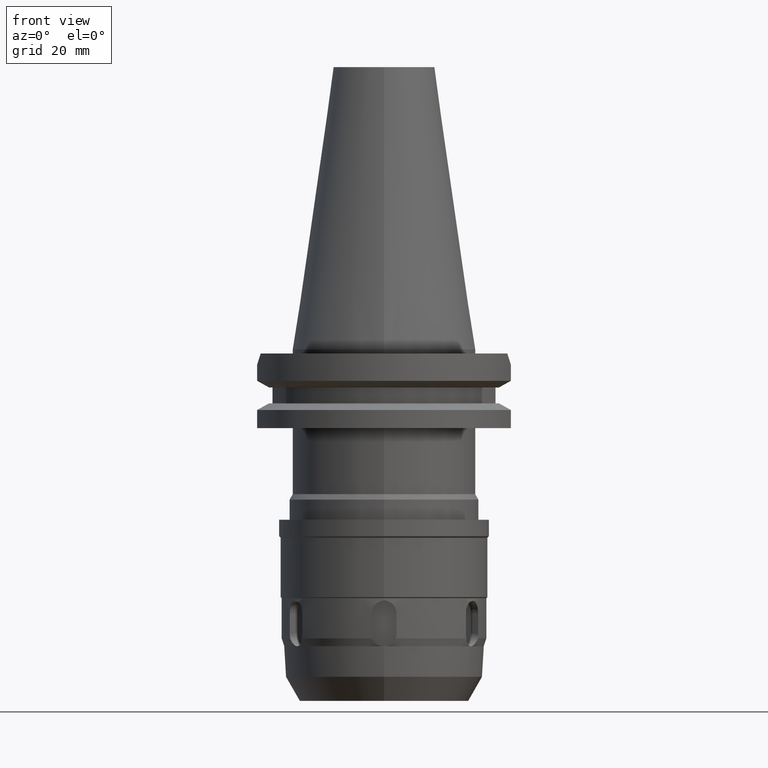
[diagram: clean part render]
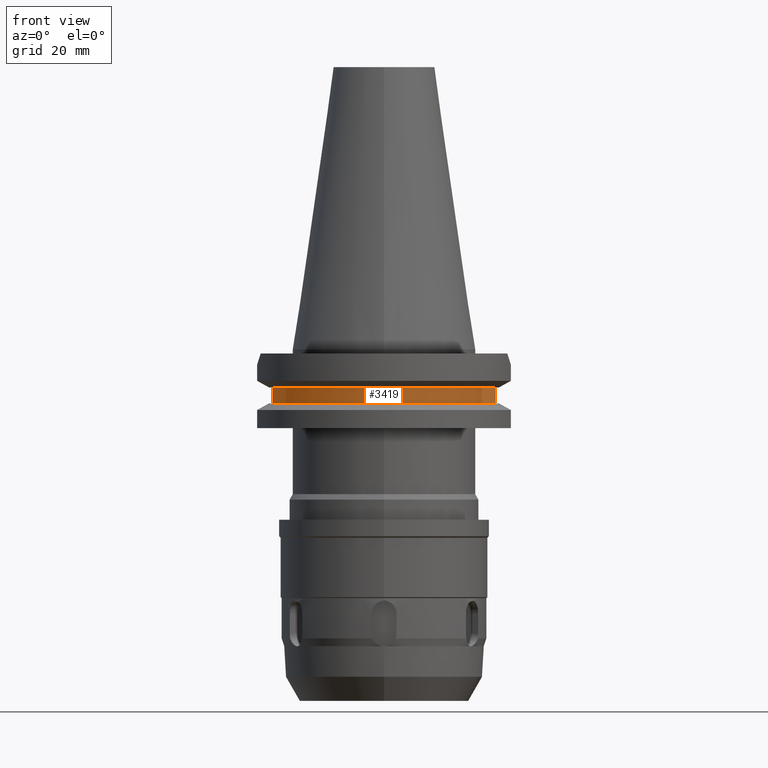
[diagram: same view with one face highlighted and labeled with its STEP entity id]
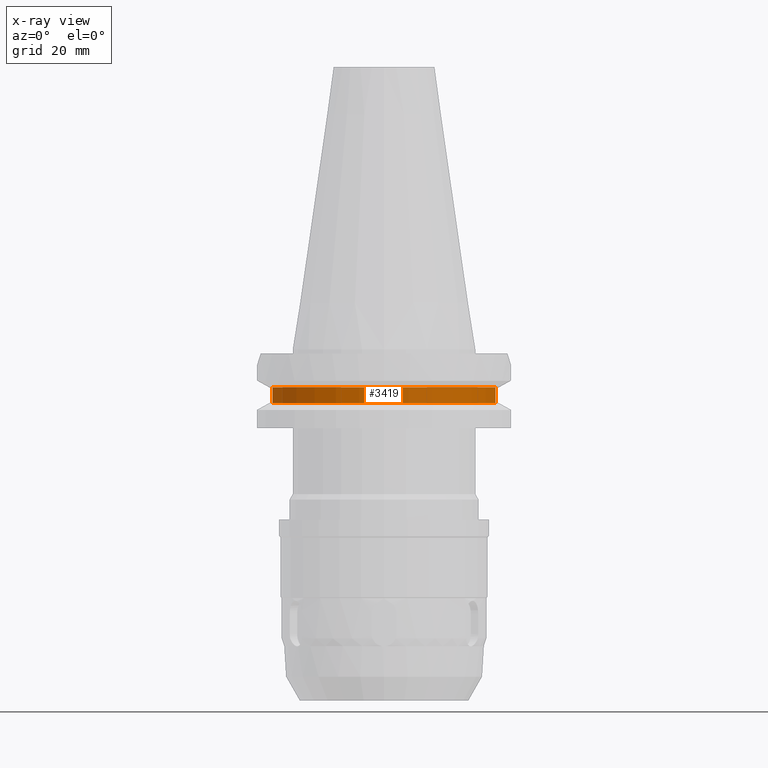
[diagram: x-ray of the same camera — body ghosted, the highlighted face saturated]
A machine part, front view. The second image highlights one B-rep face of the part: STEP entity #3419.
The next image is the same camera in x-ray: the body ghosted, the highlighted face saturated — about 0% of this face is hidden behind the body in this view.
In plain terms, the highlighted cylindrical surface (partial cylindrical patch) has radius 28.18 mm, axis along (0, 0, -1).
Its self-contained STEP definition (entity closure, byte-faithful):
#690=CARTESIAN_POINT('',(0.E0,2.154306800550E-14,-9.21E0));
#691=DIRECTION('',(0.E0,0.E0,-1.E0));
#692=DIRECTION('',(9.568350128908E-1,-2.906316536551E-1,0.E0));
#693=AXIS2_PLACEMENT_3D('',#690,#691,#692);
#698=CARTESIAN_POINT('',(0.E0,2.154306800550E-14,-9.21E0));
#699=DIRECTION('',(0.E0,0.E0,-1.E0));
#700=DIRECTION('',(0.E0,-1.E0,0.E0));
#701=AXIS2_PLACEMENT_3D('',#698,#699,#700);
#729=DIRECTION('',(0.E0,0.E0,-1.E0));
#730=VECTOR('',#729,3.84E0);
#731=CARTESIAN_POINT('',(2.696361066326E1,-8.19E0,-9.21E0));
#732=LINE('',#731,#730);
#736=DIRECTION('',(0.E0,0.E0,1.E0));
#737=VECTOR('',#736,3.84E0);
#738=CARTESIAN_POINT('',(-2.696361066326E1,-8.19E0,-1.305E1));
#739=LINE('',#738,#737);
#766=CARTESIAN_POINT('',(0.E0,2.154306800550E-14,-1.305E1));
#767=DIRECTION('',(0.E0,0.E0,1.E0));
#768=DIRECTION('',(-9.568350128908E-1,-2.906316536551E-1,0.E0));
#769=AXIS2_PLACEMENT_3D('',#766,#767,#768);
#774=CARTESIAN_POINT('',(0.E0,2.154306800550E-14,-1.305E1));
#775=DIRECTION('',(0.E0,0.E0,1.E0));
#776=DIRECTION('',(0.E0,-1.E0,0.E0));
#777=AXIS2_PLACEMENT_3D('',#774,#775,#776);
#2749=CARTESIAN_POINT('',(2.696361066326E1,-8.19E0,-1.305E1));
#2750=VERTEX_POINT('',#2749);
#2751=CARTESIAN_POINT('',(2.696361066326E1,-8.19E0,-9.21E0));
#2752=VERTEX_POINT('',#2751);
#2775=CARTESIAN_POINT('',(-2.696361066326E1,-8.19E0,-9.21E0));
#2776=VERTEX_POINT('',#2775);
#2777=CARTESIAN_POINT('',(-2.696361066326E1,-8.19E0,-1.305E1));
#2778=VERTEX_POINT('',#2777);
#2806=CARTESIAN_POINT('',(6.305166448056E-14,-2.818E1,-1.305E1));
#2807=VERTEX_POINT('',#2806);
#2812=CARTESIAN_POINT('',(-6.305166448056E-14,-2.818E1,-9.21E0));
#2813=VERTEX_POINT('',#2812);
#3404=CARTESIAN_POINT('',(0.E0,2.154306800550E-14,7.59125E1));
#3405=DIRECTION('',(0.E0,0.E0,-1.E0));
#3406=DIRECTION('',(0.E0,-1.E0,0.E0));
#3407=AXIS2_PLACEMENT_3D('',#3404,#3405,#3406);
#3408=CYLINDRICAL_SURFACE('',#3407,2.818E1);
#3409=ORIENTED_EDGE('',*,*,#3320,.T.);
#3411=ORIENTED_EDGE('',*,*,#3410,.F.);
#3413=ORIENTED_EDGE('',*,*,#3412,.F.);
#3414=ORIENTED_EDGE('',*,*,#3362,.T.);
#3415=ORIENTED_EDGE('',*,*,#3396,.F.);
#3416=ORIENTED_EDGE('',*,*,#3394,.F.);
#3417=EDGE_LOOP('',(#3409,#3411,#3413,#3414,#3415,#3416));
#3418=FACE_OUTER_BOUND('',#3417,.F.);
#694=CIRCLE('',#693,2.818E1);
#702=CIRCLE('',#701,2.818E1);
#770=CIRCLE('',#769,2.818E1);
#778=CIRCLE('',#777,2.818E1);
#3320=EDGE_CURVE('',#2752,#2750,#732,.T.);
#3362=EDGE_CURVE('',#2778,#2776,#739,.T.);
#3394=EDGE_CURVE('',#2752,#2813,#694,.T.);
#3396=EDGE_CURVE('',#2813,#2776,#702,.T.);
#3410=EDGE_CURVE('',#2807,#2750,#778,.T.);
#3412=EDGE_CURVE('',#2778,#2807,#770,.T.);
#3419=ADVANCED_FACE('',(#3418),#3408,.T.);